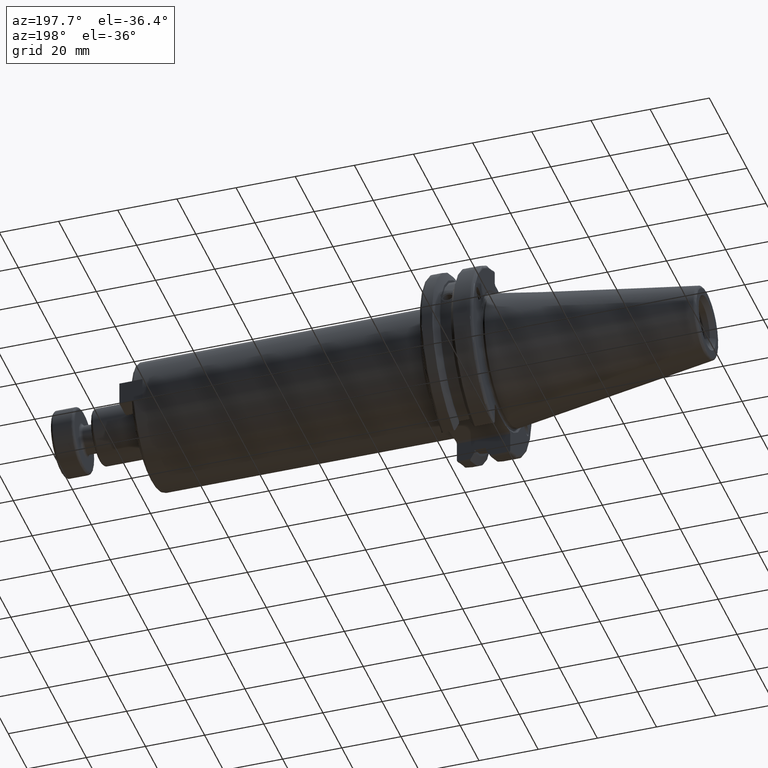
[diagram: clean part render]
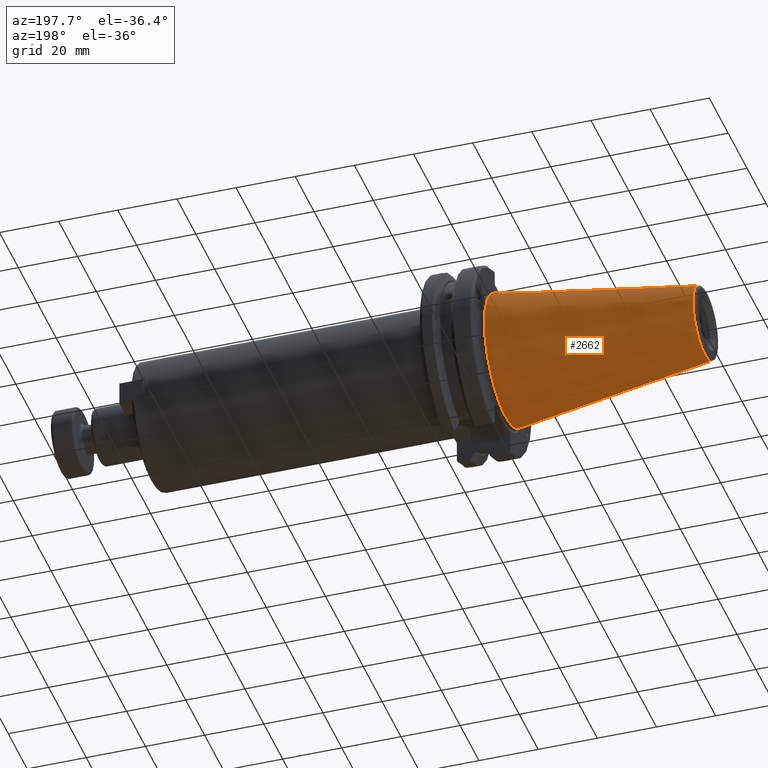
[diagram: same view with one face highlighted and labeled with its STEP entity id]
A machine part, auxiliary view. The second image highlights one B-rep face of the part: STEP entity #2662.
In plain terms, the highlighted conical surface has half-angle 8.297 deg.
Its self-contained STEP definition (entity closure, byte-faithful):
#165=CONICAL_SURFACE('',#3019,17.2484375,0.144812498238939);
#316=FACE_OUTER_BOUND('',#486,.T.);
#486=EDGE_LOOP('',(#2146,#2147,#2148,#2149,#2150));
#670=LINE('',#4883,#843);
#843=VECTOR('',#3617,17.2484375);
#998=CIRCLE('',#3013,12.3966635780937);
#999=CIRCLE('',#3014,12.3966635780937);
#1003=CIRCLE('',#3020,22.225);
#1234=VERTEX_POINT('',#4870);
#1235=VERTEX_POINT('',#4871);
#1238=VERTEX_POINT('',#4881);
#1566=EDGE_CURVE('',#1234,#1235,#998,.T.);
#1567=EDGE_CURVE('',#1235,#1234,#999,.T.);
#1571=EDGE_CURVE('',#1238,#1238,#1003,.T.);
#1572=EDGE_CURVE('',#1238,#1235,#670,.T.);
#2146=ORIENTED_EDGE('',*,*,#1571,.F.);
#2147=ORIENTED_EDGE('',*,*,#1572,.T.);
#2148=ORIENTED_EDGE('',*,*,#1566,.F.);
#2149=ORIENTED_EDGE('',*,*,#1567,.F.);
#2150=ORIENTED_EDGE('',*,*,#1572,.F.);
#2662=ADVANCED_FACE('',(#316),#165,.T.);
#3013=AXIS2_PLACEMENT_3D('',#4872,#3601,#3602);
#3014=AXIS2_PLACEMENT_3D('',#4873,#3603,#3604);
#3019=AXIS2_PLACEMENT_3D('',#4880,#3613,#3614);
#3020=AXIS2_PLACEMENT_3D('',#4882,#3615,#3616);
#3601=DIRECTION('center_axis',(-1.,0.,0.));
#3602=DIRECTION('ref_axis',(0.,-1.,3.06161699786838E-17));
#3603=DIRECTION('center_axis',(-1.,0.,0.));
#3604=DIRECTION('ref_axis',(0.,-1.,3.06161699786838E-17));
#3613=DIRECTION('center_axis',(1.,0.,0.));
#3614=DIRECTION('ref_axis',(0.,1.,0.));
#3615=DIRECTION('center_axis',(1.,0.,0.));
#3616=DIRECTION('ref_axis',(0.,0.,-1.));
#3617=DIRECTION('',(-0.989532981063282,0.144306893071729,1.76724974695192E-17));
#4870=CARTESIAN_POINT('',(-67.3943068930717,-1.5181534371019E-15,12.3966635780937));
#4871=CARTESIAN_POINT('',(-67.3943068930718,-12.3966635780937,-1.5181534371019E-15));
#4872=CARTESIAN_POINT('Origin',(-67.3943068930717,0.,-1.89769179637738E-15));
#4873=CARTESIAN_POINT('Origin',(-67.3943068930717,0.,-1.89769179637738E-15));
#4880=CARTESIAN_POINT('Origin',(-34.125,0.,0.));
#4881=CARTESIAN_POINT('',(0.,-22.225,-2.72177751110499E-15));
#4882=CARTESIAN_POINT('Origin',(0.,0.,0.));
#4883=CARTESIAN_POINT('',(-34.125,-17.2484375,-2.11232437746682E-15));